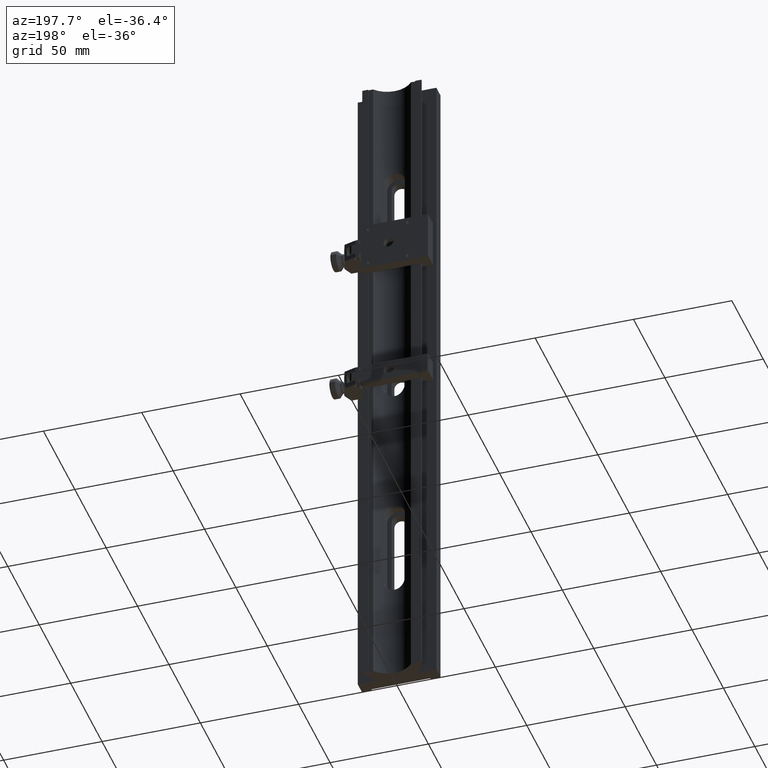
[diagram: clean part render]
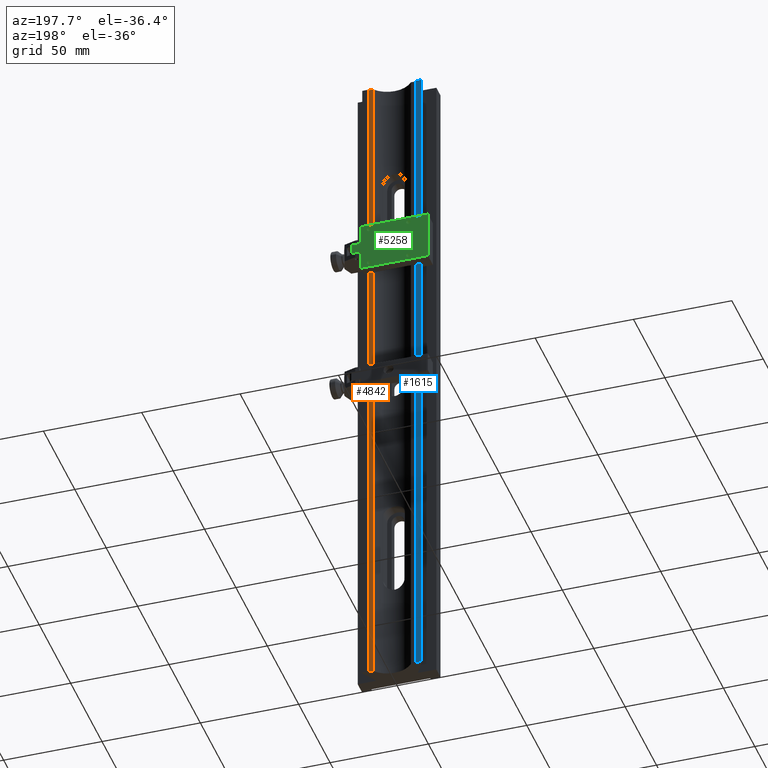
[diagram: same view with three faces highlighted in distinct colors, each labeled with its STEP entity id]
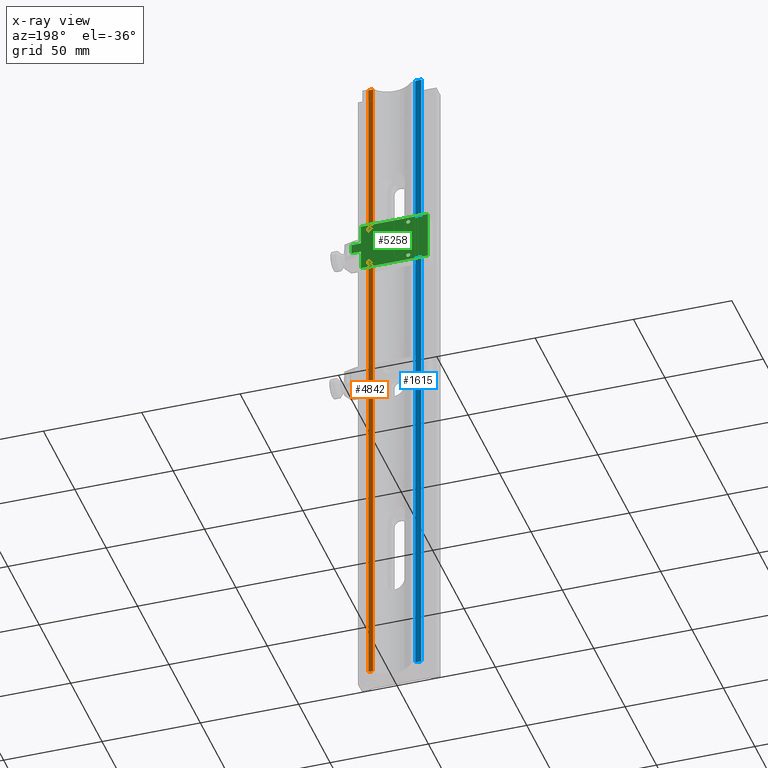
[diagram: x-ray of the same camera — body ghosted, the three highlighted faces saturated]
A machine part, auxiliary view with three faces highlighted in distinct colors.
The next image is the same camera in x-ray (body ghosted, the three faces saturated) — at least one of them is partly hidden behind the body in this view.
Their STEP definitions:

[orange] entity #4842 — the highlighted planar face has unit normal (-0, 1, 0).
#106 = DIRECTION ( 'NONE',  ( 0.000000000000000000, -0.000000000000000000, 1.000000000000000000 ) ) ;
#302 = AXIS2_PLACEMENT_3D ( 'NONE', #5383, #5255, #3723 ) ;
#370 = LINE ( 'NONE', #4209, #2445 ) ;
#495 = VERTEX_POINT ( 'NONE', #3155 ) ;
#1026 = DIRECTION ( 'NONE',  ( -1.000000000000000000, -1.445602896647339163E-16, 0.000000000000000000 ) ) ;
#1261 = LINE ( 'NONE', #6177, #1964 ) ;
#1379 = VERTEX_POINT ( 'NONE', #6603 ) ;
#1584 = EDGE_CURVE ( 'NONE', #6214, #1379, #1261, .T. ) ;
#1964 = VECTOR ( 'NONE', #5590, 1000.000000000000000 ) ;
#2383 = LINE ( 'NONE', #2766, #3367 ) ;
#2445 = VECTOR ( 'NONE', #2543, 1000.000000000000000 ) ;
#2543 = DIRECTION ( 'NONE',  ( -1.221724772161974472E-16, -0.000000000000000000, -1.000000000000000000 ) ) ;
#2766 = CARTESIAN_POINT ( 'NONE',  ( 9.604686356149276349, 8.000000000000001776, 175.0000000000000000 ) ) ;
#3155 = CARTESIAN_POINT ( 'NONE',  ( 9.604686356149276349, 8.000000000000001776, -175.0000000000000000 ) ) ;
#3217 = PLANE ( 'NONE',  #302 ) ;
#3255 = CARTESIAN_POINT ( 'NONE',  ( 9.157674552523589243E-16, 8.000000000000000000, -175.0000000000000000 ) ) ;
#3367 = VECTOR ( 'NONE', #106, 1000.000000000000000 ) ;
#3653 = EDGE_CURVE ( 'NONE', #6214, #6965, #370, .T. ) ;
#3723 = DIRECTION ( 'NONE',  ( -1.000000000000000000, -1.445602896647339163E-16, 0.000000000000000000 ) ) ;
#3907 = CARTESIAN_POINT ( 'NONE',  ( 12.00000000000003020, 8.000000000000001776, -175.0000000000000000 ) ) ;
#4209 = CARTESIAN_POINT ( 'NONE',  ( 12.00000000000003020, 8.000000000000001776, 283.9794224532299154 ) ) ;
#4458 = ORIENTED_EDGE ( 'NONE', *, *, #3653, .T. ) ;
#4575 = EDGE_LOOP ( 'NONE', ( #4458, #6414, #5261, #5221 ) ) ;
#4842 = ADVANCED_FACE ( 'NONE', ( #7009 ), #3217, .T. ) ;
#5221 = ORIENTED_EDGE ( 'NONE', *, *, #1584, .F. ) ;
#5255 = DIRECTION ( 'NONE',  ( -1.445602896647339163E-16, 1.000000000000000000, 1.766128869543160699E-32 ) ) ;
#5261 = ORIENTED_EDGE ( 'NONE', *, *, #5894, .T. ) ;
#5383 = CARTESIAN_POINT ( 'NONE',  ( -1.123668541772420414E-15, 8.000000000000000000, 1.501209539111686635E-31 ) ) ;
#5590 = DIRECTION ( 'NONE',  ( -1.000000000000000000, -1.445602896647339163E-16, 0.000000000000000000 ) ) ;
#5894 = EDGE_CURVE ( 'NONE', #495, #1379, #2383, .T. ) ;
#5966 = CARTESIAN_POINT ( 'NONE',  ( 12.00000000000001599, 8.000000000000001776, 175.0000000000000000 ) ) ;
#6106 = VECTOR ( 'NONE', #1026, 1000.000000000000000 ) ;
#6177 = CARTESIAN_POINT ( 'NONE',  ( 9.157674552523589243E-16, 8.000000000000000000, 175.0000000000000000 ) ) ;
#6214 = VERTEX_POINT ( 'NONE', #5966 ) ;
#6217 = EDGE_CURVE ( 'NONE', #6965, #495, #6975, .T. ) ;
#6414 = ORIENTED_EDGE ( 'NONE', *, *, #6217, .T. ) ;
#6603 = CARTESIAN_POINT ( 'NONE',  ( 9.604686356149276349, 8.000000000000001776, 175.0000000000000000 ) ) ;
#6965 = VERTEX_POINT ( 'NONE', #3907 ) ;
#6975 = LINE ( 'NONE', #3255, #6106 ) ;
#7009 = FACE_OUTER_BOUND ( 'NONE', #4575, .T. ) ;

[blue] entity #1615 — the highlighted planar face has unit normal (0, -1, 0).
#79 = ORIENTED_EDGE ( 'NONE', *, *, #2875, .T. ) ;
#348 = CARTESIAN_POINT ( 'NONE',  ( -11.99999999999998401, 8.499999999999998224, 175.0000000000000000 ) ) ;
#360 = PLANE ( 'NONE',  #715 ) ;
#379 = VERTEX_POINT ( 'NONE', #348 ) ;
#715 = AXIS2_PLACEMENT_3D ( 'NONE', #2504, #6252, #6315 ) ;
#739 = VECTOR ( 'NONE', #2034, 1000.000000000000000 ) ;
#929 = EDGE_CURVE ( 'NONE', #3742, #379, #1450, .T. ) ;
#975 = LINE ( 'NONE', #2777, #1198 ) ;
#1076 = CARTESIAN_POINT ( 'NONE',  ( -12.00000000000002665, 8.499999999999998224, -175.0000000000000000 ) ) ;
#1198 = VECTOR ( 'NONE', #4529, 1000.000000000000000 ) ;
#1201 = EDGE_CURVE ( 'NONE', #3742, #2018, #5409, .T. ) ;
#1422 = ORIENTED_EDGE ( 'NONE', *, *, #1201, .T. ) ;
#1450 = LINE ( 'NONE', #3614, #1791 ) ;
#1565 = CARTESIAN_POINT ( 'NONE',  ( -15.00000000000004441, 8.500000000000000000, 175.0000000000000000 ) ) ;
#1615 = ADVANCED_FACE ( 'NONE', ( #3489 ), #360, .F. ) ;
#1791 = VECTOR ( 'NONE', #4657, 1000.000000000000000 ) ;
#1988 = DIRECTION ( 'NONE',  ( 0.000000000000000000, 0.000000000000000000, 1.000000000000000000 ) ) ;
#2018 = VERTEX_POINT ( 'NONE', #6617 ) ;
#2034 = DIRECTION ( 'NONE',  ( -1.000000000000000000, 0.000000000000000000, -0.000000000000000000 ) ) ;
#2087 = CARTESIAN_POINT ( 'NONE',  ( -15.00000000000004441, 8.500000000000000000, 175.0000000000000000 ) ) ;
#2136 = ORIENTED_EDGE ( 'NONE', *, *, #3874, .F. ) ;
#2504 = CARTESIAN_POINT ( 'NONE',  ( -15.50000000000000000, 8.500000000000000000, 175.0000000000000000 ) ) ;
#2777 = CARTESIAN_POINT ( 'NONE',  ( -15.50000000000000000, 8.500000000000000000, 175.0000000000000000 ) ) ;
#2875 = EDGE_CURVE ( 'NONE', #2018, #4516, #3652, .T. ) ;
#3489 = FACE_OUTER_BOUND ( 'NONE', #6842, .T. ) ;
#3614 = CARTESIAN_POINT ( 'NONE',  ( -11.99999999999997158, 8.499999999999998224, 283.9794224532299154 ) ) ;
#3652 = LINE ( 'NONE', #1565, #6920 ) ;
#3742 = VERTEX_POINT ( 'NONE', #1076 ) ;
#3874 = EDGE_CURVE ( 'NONE', #379, #4516, #975, .T. ) ;
#4516 = VERTEX_POINT ( 'NONE', #2087 ) ;
#4529 = DIRECTION ( 'NONE',  ( -1.000000000000000000, 0.000000000000000000, -0.000000000000000000 ) ) ;
#4657 = DIRECTION ( 'NONE',  ( 1.221724772161974472E-16, 0.000000000000000000, 1.000000000000000000 ) ) ;
#4850 = CARTESIAN_POINT ( 'NONE',  ( -15.50000000000000000, 8.500000000000000000, -175.0000000000000000 ) ) ;
#5409 = LINE ( 'NONE', #4850, #739 ) ;
#5591 = ORIENTED_EDGE ( 'NONE', *, *, #929, .F. ) ;
#6252 = DIRECTION ( 'NONE',  ( 0.000000000000000000, -1.000000000000000000, 0.000000000000000000 ) ) ;
#6315 = DIRECTION ( 'NONE',  ( 1.000000000000000000, 0.000000000000000000, 0.000000000000000000 ) ) ;
#6617 = CARTESIAN_POINT ( 'NONE',  ( -14.99999999999999645, 8.500000000000049738, -175.0000000000000000 ) ) ;
#6842 = EDGE_LOOP ( 'NONE', ( #1422, #79, #2136, #5591 ) ) ;
#6920 = VECTOR ( 'NONE', #1988, 1000.000000000000000 ) ;

[green] entity #5258 — the highlighted planar face has unit normal (0, -1, 0).
#52 = ORIENTED_EDGE ( 'NONE', *, *, #666, .F. ) ;
#56 = VECTOR ( 'NONE', #1502, 1000.000000000000000 ) ;
#346 = ORIENTED_EDGE ( 'NONE', *, *, #6060, .F. ) ;
#386 = ORIENTED_EDGE ( 'NONE', *, *, #6521, .F. ) ;
#440 = EDGE_CURVE ( 'NONE', #1095, #6722, #5604, .T. ) ;
#474 = LINE ( 'NONE', #4816, #1227 ) ;
#542 = EDGE_CURVE ( 'NONE', #6722, #1095, #2302, .T. ) ;
#563 = CARTESIAN_POINT ( 'NONE',  ( -9.999999999999998224, 13.50000000000000888, 66.00997999216613721 ) ) ;
#568 = CARTESIAN_POINT ( 'NONE',  ( 14.00000000000000533, 13.50000000000000888, 64.53497999216612868 ) ) ;
#576 = DIRECTION ( 'NONE',  ( -0.000000000000000000, 1.000000000000000000, -0.000000000000000000 ) ) ;
#601 = CARTESIAN_POINT ( 'NONE',  ( 19.00000000000000355, 13.50000000000000888, 89.53497999216612868 ) ) ;
#666 = EDGE_CURVE ( 'NONE', #5818, #6629, #2867, .T. ) ;
#763 = AXIS2_PLACEMENT_3D ( 'NONE', #771, #5112, #5749 ) ;
#771 = CARTESIAN_POINT ( 'NONE',  ( 10.00000000000000178, 13.50000000000000888, 67.03497999216612868 ) ) ;
#779 = ORIENTED_EDGE ( 'NONE', *, *, #5353, .T. ) ;
#813 = DIRECTION ( 'NONE',  ( 0.000000000000000000, 0.000000000000000000, 1.000000000000000000 ) ) ;
#869 = AXIS2_PLACEMENT_3D ( 'NONE', #5228, #5693, #813 ) ;
#919 = EDGE_CURVE ( 'NONE', #4146, #2589, #2490, .T. ) ;
#924 = ORIENTED_EDGE ( 'NONE', *, *, #3693, .F. ) ;
#936 = FACE_BOUND ( 'NONE', #2388, .T. ) ;
#976 = CARTESIAN_POINT ( 'NONE',  ( 10.00000000000000178, 13.50000000000000888, 87.03497999216612868 ) ) ;
#1062 = AXIS2_PLACEMENT_3D ( 'NONE', #6341, #3617, #1922 ) ;
#1095 = VERTEX_POINT ( 'NONE', #6261 ) ;
#1118 = VERTEX_POINT ( 'NONE', #1285 ) ;
#1123 = DIRECTION ( 'NONE',  ( 0.000000000000000000, 0.000000000000000000, 1.000000000000000000 ) ) ;
#1169 = LINE ( 'NONE', #6624, #6453 ) ;
#1176 = AXIS2_PLACEMENT_3D ( 'NONE', #976, #576, #5312 ) ;
#1197 = VERTEX_POINT ( 'NONE', #6891 ) ;
#1204 = VERTEX_POINT ( 'NONE', #6394 ) ;
#1227 = VECTOR ( 'NONE', #6899, 1000.000000000000000 ) ;
#1231 = CARTESIAN_POINT ( 'NONE',  ( 10.00000000000000178, 13.50000000000000888, 86.00997999216612300 ) ) ;
#1244 = EDGE_CURVE ( 'NONE', #2593, #1433, #4811, .T. ) ;
#1272 = EDGE_LOOP ( 'NONE', ( #2282, #6432 ) ) ;
#1285 = CARTESIAN_POINT ( 'NONE',  ( -9.999999999999998224, 13.50000000000000888, 68.05997999216613437 ) ) ;
#1293 = DIRECTION ( 'NONE',  ( -0.000000000000000000, 1.000000000000000000, -0.000000000000000000 ) ) ;
#1331 = EDGE_CURVE ( 'NONE', #1433, #4117, #3740, .T. ) ;
#1408 = EDGE_CURVE ( 'NONE', #3162, #1766, #1990, .T. ) ;
#1433 = VERTEX_POINT ( 'NONE', #2773 ) ;
#1502 = DIRECTION ( 'NONE',  ( -1.000000000000000000, -0.000000000000000000, -0.000000000000000000 ) ) ;
#1507 = FACE_OUTER_BOUND ( 'NONE', #3900, .T. ) ;
#1656 = CIRCLE ( 'NONE', #5398, 2.500000000000002220 ) ;
#1678 = DIRECTION ( 'NONE',  ( 0.000000000000000000, 0.000000000000000000, -1.000000000000000000 ) ) ;
#1766 = VERTEX_POINT ( 'NONE', #5048 ) ;
#1905 = DIRECTION ( 'NONE',  ( -0.000000000000000000, -0.000000000000000000, 1.000000000000000000 ) ) ;
#1922 = DIRECTION ( 'NONE',  ( 0.000000000000000000, 0.000000000000000000, 1.000000000000000000 ) ) ;
#1948 = ORIENTED_EDGE ( 'NONE', *, *, #1244, .F. ) ;
#1971 = DIRECTION ( 'NONE',  ( 0.000000000000000000, -1.000000000000000000, 0.000000000000000000 ) ) ;
#1990 = CIRCLE ( 'NONE', #4948, 1.024999999999998135 ) ;
#2037 = CARTESIAN_POINT ( 'NONE',  ( 14.00000000000000533, 13.50000000000000888, 56.68796518890828651 ) ) ;
#2101 = ORIENTED_EDGE ( 'NONE', *, *, #4479, .T. ) ;
#2139 = DIRECTION ( 'NONE',  ( -0.000000000000000000, 1.000000000000000000, -0.000000000000000000 ) ) ;
#2282 = ORIENTED_EDGE ( 'NONE', *, *, #2314, .F. ) ;
#2302 = CIRCLE ( 'NONE', #1176, 1.024999999999998135 ) ;
#2314 = EDGE_CURVE ( 'NONE', #1118, #4461, #6248, .T. ) ;
#2356 = CARTESIAN_POINT ( 'NONE',  ( -9.999999999999998224, 13.50000000000000888, 87.03497999216612868 ) ) ;
#2388 = EDGE_LOOP ( 'NONE', ( #52, #386 ) ) ;
#2489 = AXIS2_PLACEMENT_3D ( 'NONE', #4896, #5346, #1123 ) ;
#2490 = LINE ( 'NONE', #4764, #6691 ) ;
#2528 = VERTEX_POINT ( 'NONE', #2960 ) ;
#2545 = FACE_BOUND ( 'NONE', #5250, .T. ) ;
#2570 = CARTESIAN_POINT ( 'NONE',  ( -20.00000000000001066, 13.50000000000000888, 89.53497999216612868 ) ) ;
#2589 = VERTEX_POINT ( 'NONE', #568 ) ;
#2590 = EDGE_CURVE ( 'NONE', #1197, #6384, #3301, .T. ) ;
#2593 = VERTEX_POINT ( 'NONE', #6021 ) ;
#2605 = ORIENTED_EDGE ( 'NONE', *, *, #542, .F. ) ;
#2613 = DIRECTION ( 'NONE',  ( 0.000000000000000000, -0.000000000000000000, -1.000000000000000000 ) ) ;
#2646 = ORIENTED_EDGE ( 'NONE', *, *, #2590, .T. ) ;
#2699 = CARTESIAN_POINT ( 'NONE',  ( 14.00000000000000533, 13.50000000000000888, 79.53497999216612868 ) ) ;
#2739 = CARTESIAN_POINT ( 'NONE',  ( 14.00000000000000533, 13.50000000000000888, 74.53497999216612868 ) ) ;
#2762 = CARTESIAN_POINT ( 'NONE',  ( 1.734723475976807094E-15, 13.50000000000000888, 79.53497999216612868 ) ) ;
#2773 = CARTESIAN_POINT ( 'NONE',  ( -20.00000000000001066, 13.50000000000000888, 89.53497999216612868 ) ) ;
#2844 = DIRECTION ( 'NONE',  ( -0.000000000000000000, 1.000000000000000000, -0.000000000000000000 ) ) ;
#2867 = CIRCLE ( 'NONE', #6866, 1.024999999999998135 ) ;
#2878 = DIRECTION ( 'NONE',  ( 0.000000000000000000, 0.000000000000000000, 1.000000000000000000 ) ) ;
#2887 = ORIENTED_EDGE ( 'NONE', *, *, #919, .T. ) ;
#2960 = CARTESIAN_POINT ( 'NONE',  ( 14.00000000000000533, 13.50000000000000888, 79.53497999216612868 ) ) ;
#3000 = EDGE_LOOP ( 'NONE', ( #3780, #346 ) ) ;
#3008 = VERTEX_POINT ( 'NONE', #2762 ) ;
#3013 = DIRECTION ( 'NONE',  ( -0.000000000000000000, 1.000000000000000000, -0.000000000000000000 ) ) ;
#3129 = VECTOR ( 'NONE', #1905, 1000.000000000000000 ) ;
#3138 = AXIS2_PLACEMENT_3D ( 'NONE', #5121, #3013, #4082 ) ;
#3162 = VERTEX_POINT ( 'NONE', #6081 ) ;
#3175 = CARTESIAN_POINT ( 'NONE',  ( -20.00000000000001066, 13.50000000000000888, 89.53497999216612868 ) ) ;
#3183 = ORIENTED_EDGE ( 'NONE', *, *, #440, .F. ) ;
#3264 = DIRECTION ( 'NONE',  ( -0.000000000000000000, 1.000000000000000000, -0.000000000000000000 ) ) ;
#3301 = LINE ( 'NONE', #601, #6992 ) ;
#3399 = DIRECTION ( 'NONE',  ( -1.000000000000000000, 0.000000000000000000, 0.000000000000000000 ) ) ;
#3617 = DIRECTION ( 'NONE',  ( -0.000000000000000000, 1.000000000000000000, -0.000000000000000000 ) ) ;
#3637 = FACE_BOUND ( 'NONE', #1272, .T. ) ;
#3670 = PLANE ( 'NONE',  #5527 ) ;
#3693 = EDGE_CURVE ( 'NONE', #2528, #2593, #5273, .T. ) ;
#3704 = CARTESIAN_POINT ( 'NONE',  ( -20.00000000000001066, 13.50000000000000888, 89.53497999216612868 ) ) ;
#3738 = CARTESIAN_POINT ( 'NONE',  ( -20.00000000000001066, 13.50000000000000888, 64.53497999216612868 ) ) ;
#3740 = LINE ( 'NONE', #3704, #6213 ) ;
#3780 = ORIENTED_EDGE ( 'NONE', *, *, #1408, .F. ) ;
#3900 = EDGE_LOOP ( 'NONE', ( #2101, #2646, #6370, #2887, #779, #5210, #1948, #924 ) ) ;
#3936 = VECTOR ( 'NONE', #4773, 1000.000000000000000 ) ;
#3946 = EDGE_LOOP ( 'NONE', ( #6870, #6638 ) ) ;
#4082 = DIRECTION ( 'NONE',  ( 0.000000000000000000, 0.000000000000000000, 1.000000000000000000 ) ) ;
#4117 = VERTEX_POINT ( 'NONE', #3738 ) ;
#4146 = VERTEX_POINT ( 'NONE', #2739 ) ;
#4229 = EDGE_CURVE ( 'NONE', #3008, #1204, #1656, .T. ) ;
#4241 = DIRECTION ( 'NONE',  ( -0.000000000000000000, -0.000000000000000000, -1.000000000000000000 ) ) ;
#4410 = CARTESIAN_POINT ( 'NONE',  ( 1.734723475976807094E-15, 13.50000000000000888, 77.03497999216612868 ) ) ;
#4461 = VERTEX_POINT ( 'NONE', #563 ) ;
#4479 = EDGE_CURVE ( 'NONE', #2528, #1197, #6489, .T. ) ;
#4631 = EDGE_CURVE ( 'NONE', #6384, #4146, #1169, .T. ) ;
#4637 = CIRCLE ( 'NONE', #763, 1.024999999999998135 ) ;
#4706 = DIRECTION ( 'NONE',  ( 0.000000000000000000, 0.000000000000000000, 1.000000000000000000 ) ) ;
#4714 = EDGE_CURVE ( 'NONE', #4461, #1118, #6343, .T. ) ;
#4764 = CARTESIAN_POINT ( 'NONE',  ( 14.00000000000000533, 13.50000000000000888, 97.38199479542397796 ) ) ;
#4773 = DIRECTION ( 'NONE',  ( 1.000000000000000000, 0.000000000000000000, -0.000000000000000000 ) ) ;
#4811 = LINE ( 'NONE', #2570, #56 ) ;
#4816 = CARTESIAN_POINT ( 'NONE',  ( -20.00000000000001066, 13.50000000000000888, 64.53497999216612868 ) ) ;
#4847 = CARTESIAN_POINT ( 'NONE',  ( 1.734723475976807094E-15, 13.50000000000000888, 77.03497999216612868 ) ) ;
#4896 = CARTESIAN_POINT ( 'NONE',  ( -9.999999999999998224, 13.50000000000000888, 67.03497999216612868 ) ) ;
#4908 = DIRECTION ( 'NONE',  ( 0.000000000000000000, 0.000000000000000000, 1.000000000000000000 ) ) ;
#4948 = AXIS2_PLACEMENT_3D ( 'NONE', #2356, #1293, #6568 ) ;
#4981 = CIRCLE ( 'NONE', #7034, 2.500000000000002220 ) ;
#5048 = CARTESIAN_POINT ( 'NONE',  ( -9.999999999999998224, 13.50000000000000888, 86.00997999216612300 ) ) ;
#5112 = DIRECTION ( 'NONE',  ( -0.000000000000000000, 1.000000000000000000, -0.000000000000000000 ) ) ;
#5121 = CARTESIAN_POINT ( 'NONE',  ( -9.999999999999998224, 13.50000000000000888, 67.03497999216612868 ) ) ;
#5210 = ORIENTED_EDGE ( 'NONE', *, *, #1331, .F. ) ;
#5228 = CARTESIAN_POINT ( 'NONE',  ( -9.999999999999998224, 13.50000000000000888, 87.03497999216612868 ) ) ;
#5250 = EDGE_LOOP ( 'NONE', ( #3183, #2605 ) ) ;
#5258 = ADVANCED_FACE ( 'NONE', ( #5601, #3637, #936, #2545, #5373, #1507 ), #3670, .F. ) ;
#5273 = LINE ( 'NONE', #2037, #3129 ) ;
#5312 = DIRECTION ( 'NONE',  ( 0.000000000000000000, 0.000000000000000000, 1.000000000000000000 ) ) ;
#5346 = DIRECTION ( 'NONE',  ( -0.000000000000000000, 1.000000000000000000, -0.000000000000000000 ) ) ;
#5353 = EDGE_CURVE ( 'NONE', #2589, #4117, #474, .T. ) ;
#5373 = FACE_BOUND ( 'NONE', #3946, .T. ) ;
#5398 = AXIS2_PLACEMENT_3D ( 'NONE', #4410, #2844, #2878 ) ;
#5527 = AXIS2_PLACEMENT_3D ( 'NONE', #3175, #1971, #2613 ) ;
#5531 = CIRCLE ( 'NONE', #869, 1.024999999999998135 ) ;
#5601 = FACE_BOUND ( 'NONE', #3000, .T. ) ;
#5604 = CIRCLE ( 'NONE', #1062, 1.024999999999998135 ) ;
#5693 = DIRECTION ( 'NONE',  ( -0.000000000000000000, 1.000000000000000000, -0.000000000000000000 ) ) ;
#5714 = CARTESIAN_POINT ( 'NONE',  ( 19.00000000000000355, 13.50000000000000888, 74.53497999216612868 ) ) ;
#5749 = DIRECTION ( 'NONE',  ( 0.000000000000000000, 0.000000000000000000, 1.000000000000000000 ) ) ;
#5818 = VERTEX_POINT ( 'NONE', #6456 ) ;
#5975 = CARTESIAN_POINT ( 'NONE',  ( 10.00000000000000178, 13.50000000000000888, 67.03497999216612868 ) ) ;
#6021 = CARTESIAN_POINT ( 'NONE',  ( 14.00000000000000711, 13.50000000000000888, 89.53497999216612868 ) ) ;
#6060 = EDGE_CURVE ( 'NONE', #1766, #3162, #5531, .T. ) ;
#6081 = CARTESIAN_POINT ( 'NONE',  ( -9.999999999999998224, 13.50000000000000888, 88.05997999216612016 ) ) ;
#6149 = CARTESIAN_POINT ( 'NONE',  ( 10.00000000000000178, 13.50000000000000888, 66.00997999216613721 ) ) ;
#6213 = VECTOR ( 'NONE', #4241, 1000.000000000000000 ) ;
#6248 = CIRCLE ( 'NONE', #2489, 1.024999999999998135 ) ;
#6261 = CARTESIAN_POINT ( 'NONE',  ( 10.00000000000000178, 13.50000000000000888, 88.05997999216612016 ) ) ;
#6341 = CARTESIAN_POINT ( 'NONE',  ( 10.00000000000000178, 13.50000000000000888, 87.03497999216612868 ) ) ;
#6343 = CIRCLE ( 'NONE', #3138, 1.024999999999998135 ) ;
#6370 = ORIENTED_EDGE ( 'NONE', *, *, #4631, .T. ) ;
#6384 = VERTEX_POINT ( 'NONE', #5714 ) ;
#6394 = CARTESIAN_POINT ( 'NONE',  ( 2.040885175763644570E-15, 13.50000000000000888, 74.53497999216612868 ) ) ;
#6432 = ORIENTED_EDGE ( 'NONE', *, *, #4714, .F. ) ;
#6453 = VECTOR ( 'NONE', #3399, 1000.000000000000000 ) ;
#6456 = CARTESIAN_POINT ( 'NONE',  ( 10.00000000000000178, 13.50000000000000888, 68.05997999216613437 ) ) ;
#6489 = LINE ( 'NONE', #2699, #3936 ) ;
#6521 = EDGE_CURVE ( 'NONE', #6629, #5818, #4637, .T. ) ;
#6568 = DIRECTION ( 'NONE',  ( 0.000000000000000000, 0.000000000000000000, 1.000000000000000000 ) ) ;
#6624 = CARTESIAN_POINT ( 'NONE',  ( 14.00000000000000533, 13.50000000000000888, 74.53497999216612868 ) ) ;
#6629 = VERTEX_POINT ( 'NONE', #6149 ) ;
#6638 = ORIENTED_EDGE ( 'NONE', *, *, #6948, .F. ) ;
#6691 = VECTOR ( 'NONE', #6812, 1000.000000000000000 ) ;
#6722 = VERTEX_POINT ( 'NONE', #1231 ) ;
#6812 = DIRECTION ( 'NONE',  ( -0.000000000000000000, -0.000000000000000000, -1.000000000000000000 ) ) ;
#6866 = AXIS2_PLACEMENT_3D ( 'NONE', #5975, #3264, #4908 ) ;
#6870 = ORIENTED_EDGE ( 'NONE', *, *, #4229, .F. ) ;
#6891 = CARTESIAN_POINT ( 'NONE',  ( 19.00000000000000355, 13.50000000000000888, 79.53497999216612868 ) ) ;
#6899 = DIRECTION ( 'NONE',  ( -1.000000000000000000, -0.000000000000000000, -0.000000000000000000 ) ) ;
#6948 = EDGE_CURVE ( 'NONE', #1204, #3008, #4981, .T. ) ;
#6992 = VECTOR ( 'NONE', #1678, 1000.000000000000000 ) ;
#7034 = AXIS2_PLACEMENT_3D ( 'NONE', #4847, #2139, #4706 ) ;